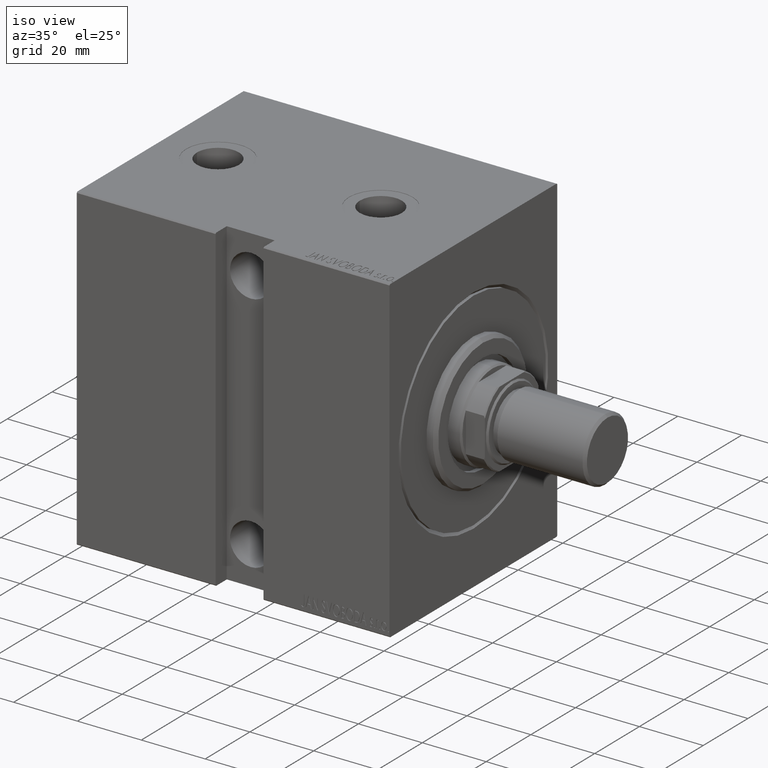
[diagram: clean part render]
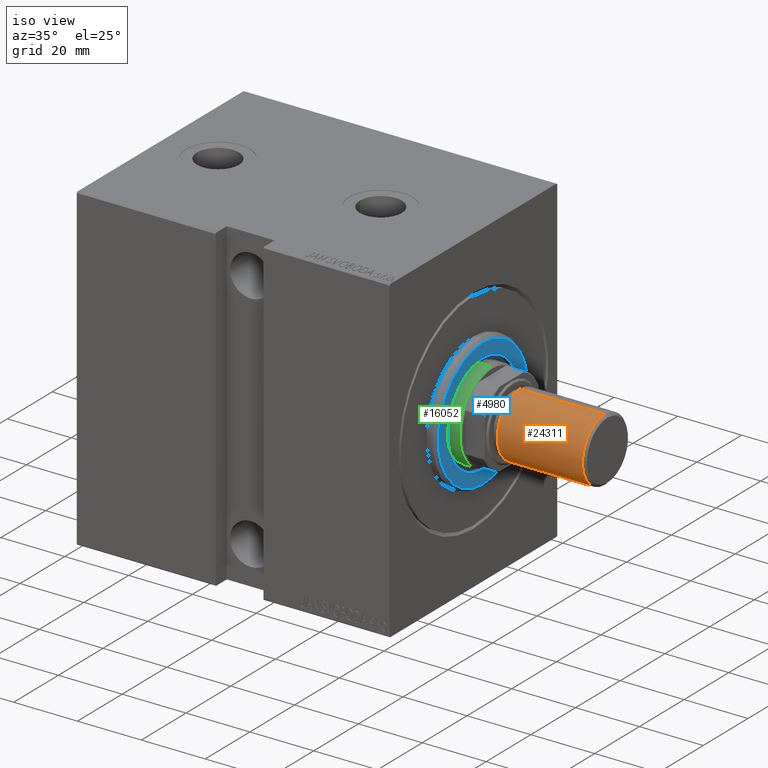
[diagram: same view with three faces highlighted in distinct colors, each labeled with its STEP entity id]
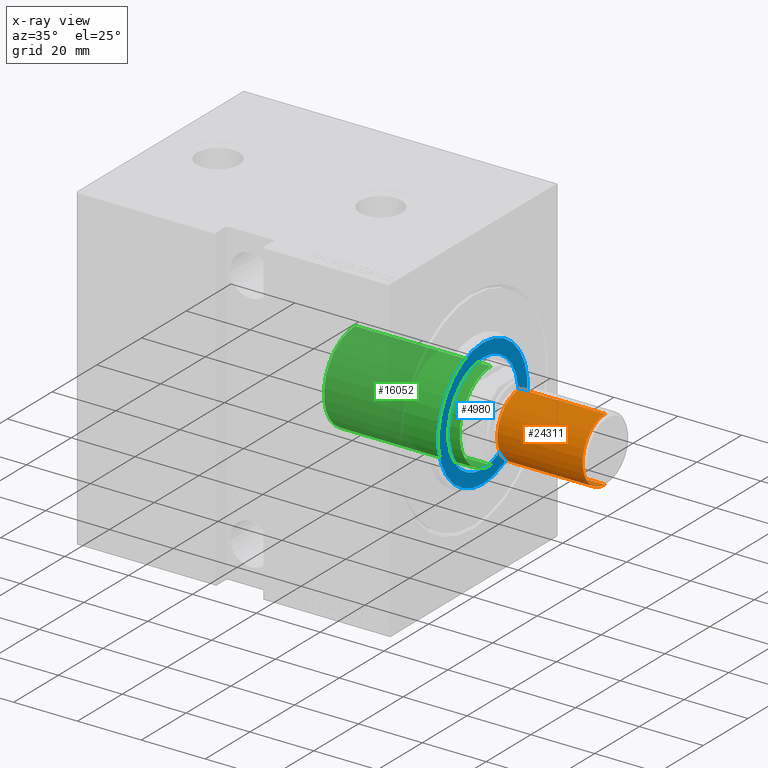
[diagram: x-ray of the same camera — body ghosted, the three highlighted faces saturated]
A machine part, iso view with three faces highlighted in distinct colors.
The next image is the same camera in x-ray (body ghosted, the three faces saturated) — at least one of them is partly hidden behind the body in this view.
Their STEP definitions:

[orange] entity #24311 — the highlighted cylindrical surface (partial cylindrical patch) has radius 10 mm, axis along (1, -0, -0).
#434 = ORIENTED_EDGE ( 'NONE', *, *, #38441, .F. ) ;
#1640 = VECTOR ( 'NONE', #12829, 1000.000000000000000 ) ;
#2668 = VERTEX_POINT ( 'NONE', #12031 ) ;
#3150 = LINE ( 'NONE', #9964, #1640 ) ;
#4742 = EDGE_LOOP ( 'NONE', ( #434, #14856, #32154, #31293 ) ) ;
#4784 = DIRECTION ( 'NONE',  ( 0.000000000000000000, 0.000000000000000000, 1.000000000000000000 ) ) ;
#4908 = DIRECTION ( 'NONE',  ( 1.000000000000000000, 0.000000000000000000, 0.000000000000000000 ) ) ;
#4984 = EDGE_CURVE ( 'NONE', #24173, #42825, #3150, .T. ) ;
#8342 = EDGE_CURVE ( 'NONE', #24173, #2668, #24090, .T. ) ;
#8740 = DIRECTION ( 'NONE',  ( 1.000000000000000000, 0.000000000000000000, 0.000000000000000000 ) ) ;
#9078 = FACE_OUTER_BOUND ( 'NONE', #4742, .T. ) ;
#9964 = CARTESIAN_POINT ( 'NONE',  ( -10.00000000000000000, 0.000000000000000000, 27.50000000000000000 ) ) ;
#12031 = CARTESIAN_POINT ( 'NONE',  ( 10.00000000000000000, 1.224646799147353256E-15, 27.50000000000000000 ) ) ;
#12829 = DIRECTION ( 'NONE',  ( -0.000000000000000000, -0.000000000000000000, -1.000000000000000000 ) ) ;
#13603 = AXIS2_PLACEMENT_3D ( 'NONE', #38158, #4784, #8740 ) ;
#14582 = CARTESIAN_POINT ( 'NONE',  ( 0.000000000000000000, 0.000000000000000000, 0.7999999999999986011 ) ) ;
#14856 = ORIENTED_EDGE ( 'NONE', *, *, #8342, .F. ) ;
#15663 = CARTESIAN_POINT ( 'NONE',  ( 0.000000000000000000, 0.000000000000000000, 27.50000000000000000 ) ) ;
#16088 = CYLINDRICAL_SURFACE ( 'NONE', #29169, 10.00000000000000000 ) ;
#19268 = EDGE_CURVE ( 'NONE', #42825, #37185, #34803, .T. ) ;
#24090 = CIRCLE ( 'NONE', #13603, 10.00000000000000000 ) ;
#24173 = VERTEX_POINT ( 'NONE', #40268 ) ;
#24311 = ADVANCED_FACE ( 'NONE', ( #9078 ), #16088, .T. ) ;
#24526 = VECTOR ( 'NONE', #35537, 1000.000000000000000 ) ;
#26260 = CARTESIAN_POINT ( 'NONE',  ( 10.00000000000000000, 1.224646799147353256E-15, 27.50000000000000000 ) ) ;
#27962 = DIRECTION ( 'NONE',  ( -0.000000000000000000, -0.000000000000000000, 1.000000000000000000 ) ) ;
#28222 = CARTESIAN_POINT ( 'NONE',  ( -10.00000000000000000, 0.000000000000000000, 0.7999999999999986011 ) ) ;
#29169 = AXIS2_PLACEMENT_3D ( 'NONE', #15663, #39368, #42858 ) ;
#29357 = LINE ( 'NONE', #26260, #24526 ) ;
#31293 = ORIENTED_EDGE ( 'NONE', *, *, #19268, .T. ) ;
#32154 = ORIENTED_EDGE ( 'NONE', *, *, #4984, .T. ) ;
#34803 = CIRCLE ( 'NONE', #36173, 10.00000000000000000 ) ;
#35537 = DIRECTION ( 'NONE',  ( -0.000000000000000000, -0.000000000000000000, -1.000000000000000000 ) ) ;
#36173 = AXIS2_PLACEMENT_3D ( 'NONE', #14582, #27962, #4908 ) ;
#37185 = VERTEX_POINT ( 'NONE', #37500 ) ;
#37500 = CARTESIAN_POINT ( 'NONE',  ( 10.00000000000000000, 1.224646799147353256E-15, 0.7999999999999986011 ) ) ;
#38158 = CARTESIAN_POINT ( 'NONE',  ( 0.000000000000000000, 0.000000000000000000, 27.50000000000000000 ) ) ;
#38441 = EDGE_CURVE ( 'NONE', #2668, #37185, #29357, .T. ) ;
#39368 = DIRECTION ( 'NONE',  ( -0.000000000000000000, -0.000000000000000000, -1.000000000000000000 ) ) ;
#40268 = CARTESIAN_POINT ( 'NONE',  ( -10.00000000000000000, 0.000000000000000000, 27.50000000000000000 ) ) ;
#42825 = VERTEX_POINT ( 'NONE', #28222 ) ;
#42858 = DIRECTION ( 'NONE',  ( -1.000000000000000000, 0.000000000000000000, 0.000000000000000000 ) ) ;

[blue] entity #4980 — the highlighted planar face has unit normal (1, 0, 0).
#289 = EDGE_CURVE ( 'NONE', #17745, #40610, #35284, .T. ) ;
#344 = ORIENTED_EDGE ( 'NONE', *, *, #289, .T. ) ;
#1896 = CIRCLE ( 'NONE', #12387, 15.75000000000000000 ) ;
#2728 = FACE_BOUND ( 'NONE', #35295, .T. ) ;
#4980 = ADVANCED_FACE ( 'NONE', ( #32799, #2728 ), #6446, .T. ) ;
#5120 = AXIS2_PLACEMENT_3D ( 'NONE', #40030, #33228, #43312 ) ;
#5365 = DIRECTION ( 'NONE',  ( -1.000000000000000000, 0.000000000000000000, -0.000000000000000000 ) ) ;
#6446 = PLANE ( 'NONE',  #5120 ) ;
#6972 = DIRECTION ( 'NONE',  ( 0.000000000000000000, 0.000000000000000000, -1.000000000000000000 ) ) ;
#7191 = CARTESIAN_POINT ( 'NONE',  ( 3.000000000000000000, 1.928818708657080950E-15, -15.75000000000000000 ) ) ;
#8126 = AXIS2_PLACEMENT_3D ( 'NONE', #25342, #5365, #24903 ) ;
#9227 = AXIS2_PLACEMENT_3D ( 'NONE', #39473, #23204, #36177 ) ;
#9723 = EDGE_LOOP ( 'NONE', ( #26194, #344 ) ) ;
#10201 = ORIENTED_EDGE ( 'NONE', *, *, #25808, .T. ) ;
#12387 = AXIS2_PLACEMENT_3D ( 'NONE', #38232, #28770, #24829 ) ;
#13774 = DIRECTION ( 'NONE',  ( 1.000000000000000000, -0.000000000000000000, 0.000000000000000000 ) ) ;
#15924 = CIRCLE ( 'NONE', #8126, 15.75000000000000000 ) ;
#16742 = EDGE_CURVE ( 'NONE', #22270, #27018, #15924, .T. ) ;
#17745 = VERTEX_POINT ( 'NONE', #24202 ) ;
#19534 = CIRCLE ( 'NONE', #22367, 20.00000000000001776 ) ;
#22270 = VERTEX_POINT ( 'NONE', #43006 ) ;
#22367 = AXIS2_PLACEMENT_3D ( 'NONE', #37044, #13774, #6972 ) ;
#23204 = DIRECTION ( 'NONE',  ( 1.000000000000000000, -0.000000000000000000, 0.000000000000000000 ) ) ;
#24202 = CARTESIAN_POINT ( 'NONE',  ( 3.000000000000000000, 2.510525938252075270E-15, -20.00000000000001776 ) ) ;
#24829 = DIRECTION ( 'NONE',  ( 0.000000000000000000, 0.000000000000000000, -1.000000000000000000 ) ) ;
#24903 = DIRECTION ( 'NONE',  ( 0.000000000000000000, 0.000000000000000000, -1.000000000000000000 ) ) ;
#25342 = CARTESIAN_POINT ( 'NONE',  ( 3.000000000000000000, 0.000000000000000000, 0.000000000000000000 ) ) ;
#25808 = EDGE_CURVE ( 'NONE', #27018, #22270, #1896, .T. ) ;
#26194 = ORIENTED_EDGE ( 'NONE', *, *, #31441, .T. ) ;
#27018 = VERTEX_POINT ( 'NONE', #7191 ) ;
#28770 = DIRECTION ( 'NONE',  ( -1.000000000000000000, 0.000000000000000000, -0.000000000000000000 ) ) ;
#31441 = EDGE_CURVE ( 'NONE', #40610, #17745, #19534, .T. ) ;
#32799 = FACE_OUTER_BOUND ( 'NONE', #9723, .T. ) ;
#33228 = DIRECTION ( 'NONE',  ( 1.000000000000000000, -0.000000000000000000, 0.000000000000000000 ) ) ;
#35284 = CIRCLE ( 'NONE', #9227, 20.00000000000001776 ) ;
#35295 = EDGE_LOOP ( 'NONE', ( #38475, #10201 ) ) ;
#36177 = DIRECTION ( 'NONE',  ( 0.000000000000000000, 0.000000000000000000, -1.000000000000000000 ) ) ;
#37044 = CARTESIAN_POINT ( 'NONE',  ( 3.000000000000000000, 0.000000000000000000, 0.000000000000000000 ) ) ;
#38232 = CARTESIAN_POINT ( 'NONE',  ( 3.000000000000000000, 0.000000000000000000, 0.000000000000000000 ) ) ;
#38475 = ORIENTED_EDGE ( 'NONE', *, *, #16742, .T. ) ;
#39070 = CARTESIAN_POINT ( 'NONE',  ( 3.000000000000000000, 0.000000000000000000, 20.00000000000001776 ) ) ;
#39473 = CARTESIAN_POINT ( 'NONE',  ( 3.000000000000000000, 0.000000000000000000, 0.000000000000000000 ) ) ;
#40030 = CARTESIAN_POINT ( 'NONE',  ( 3.000000000000000000, 0.000000000000000000, 0.000000000000000000 ) ) ;
#40610 = VERTEX_POINT ( 'NONE', #39070 ) ;
#43006 = CARTESIAN_POINT ( 'NONE',  ( 3.000000000000000000, 0.000000000000000000, 15.75000000000000000 ) ) ;
#43312 = DIRECTION ( 'NONE',  ( 0.000000000000000000, 0.000000000000000000, -1.000000000000000000 ) ) ;

[green] entity #16052 — the highlighted cylindrical surface (partial cylindrical patch) has radius 14 mm, axis along (-1, -0, 0).
#141 = VERTEX_POINT ( 'NONE', #5673 ) ;
#2403 = DIRECTION ( 'NONE',  ( -0.000000000000000000, -0.000000000000000000, -1.000000000000000000 ) ) ;
#3585 = VECTOR ( 'NONE', #2403, 1000.000000000000000 ) ;
#4122 = EDGE_CURVE ( 'NONE', #28741, #141, #16298, .T. ) ;
#5673 = CARTESIAN_POINT ( 'NONE',  ( 14.00000000000000178, 1.714505518806294835E-15, 47.00000000000000000 ) ) ;
#5697 = LINE ( 'NONE', #32480, #3585 ) ;
#10414 = DIRECTION ( 'NONE',  ( 1.000000000000000000, 0.000000000000000000, 0.000000000000000000 ) ) ;
#13395 = FACE_OUTER_BOUND ( 'NONE', #40291, .T. ) ;
#16052 = ADVANCED_FACE ( 'NONE', ( #13395 ), #29051, .T. ) ;
#16298 = CIRCLE ( 'NONE', #27505, 14.00000000000000178 ) ;
#16557 = ORIENTED_EDGE ( 'NONE', *, *, #4122, .T. ) ;
#16697 = AXIS2_PLACEMENT_3D ( 'NONE', #33731, #24496, #17911 ) ;
#17911 = DIRECTION ( 'NONE',  ( 1.000000000000000000, 0.000000000000000000, 0.000000000000000000 ) ) ;
#19761 = CARTESIAN_POINT ( 'NONE',  ( 14.00000000000000178, 1.714505518806294835E-15, 90.00000000000000000 ) ) ;
#20141 = CARTESIAN_POINT ( 'NONE',  ( 14.00000000000000178, 1.714505518806294835E-15, 89.49999999999997158 ) ) ;
#20186 = DIRECTION ( 'NONE',  ( -0.000000000000000000, -0.000000000000000000, -1.000000000000000000 ) ) ;
#20261 = CARTESIAN_POINT ( 'NONE',  ( -14.00000000000000178, 0.000000000000000000, 47.00000000000000000 ) ) ;
#21469 = ORIENTED_EDGE ( 'NONE', *, *, #29256, .T. ) ;
#23285 = LINE ( 'NONE', #19761, #39950 ) ;
#23681 = CIRCLE ( 'NONE', #16697, 14.00000000000000178 ) ;
#24496 = DIRECTION ( 'NONE',  ( 0.000000000000000000, 0.000000000000000000, -1.000000000000000000 ) ) ;
#25758 = CARTESIAN_POINT ( 'NONE',  ( 0.000000000000000000, 0.000000000000000000, 90.00000000000000000 ) ) ;
#27505 = AXIS2_PLACEMENT_3D ( 'NONE', #40469, #34107, #10414 ) ;
#28741 = VERTEX_POINT ( 'NONE', #20261 ) ;
#29035 = ORIENTED_EDGE ( 'NONE', *, *, #35010, .F. ) ;
#29051 = CYLINDRICAL_SURFACE ( 'NONE', #29204, 14.00000000000000178 ) ;
#29204 = AXIS2_PLACEMENT_3D ( 'NONE', #25758, #20186, #33593 ) ;
#29256 = EDGE_CURVE ( 'NONE', #40685, #40087, #23681, .T. ) ;
#29651 = DIRECTION ( 'NONE',  ( -0.000000000000000000, -0.000000000000000000, -1.000000000000000000 ) ) ;
#32480 = CARTESIAN_POINT ( 'NONE',  ( -14.00000000000000178, 0.000000000000000000, 90.00000000000000000 ) ) ;
#32625 = CARTESIAN_POINT ( 'NONE',  ( -14.00000000000000178, 0.000000000000000000, 89.49999999999997158 ) ) ;
#33593 = DIRECTION ( 'NONE',  ( -1.000000000000000000, 0.000000000000000000, 0.000000000000000000 ) ) ;
#33731 = CARTESIAN_POINT ( 'NONE',  ( 0.000000000000000000, 0.000000000000000000, 89.49999999999997158 ) ) ;
#34107 = DIRECTION ( 'NONE',  ( 0.000000000000000000, 0.000000000000000000, 1.000000000000000000 ) ) ;
#34137 = ORIENTED_EDGE ( 'NONE', *, *, #42423, .T. ) ;
#35010 = EDGE_CURVE ( 'NONE', #40685, #141, #23285, .T. ) ;
#39950 = VECTOR ( 'NONE', #29651, 1000.000000000000000 ) ;
#40087 = VERTEX_POINT ( 'NONE', #32625 ) ;
#40291 = EDGE_LOOP ( 'NONE', ( #29035, #21469, #34137, #16557 ) ) ;
#40469 = CARTESIAN_POINT ( 'NONE',  ( 0.000000000000000000, 0.000000000000000000, 47.00000000000000000 ) ) ;
#40685 = VERTEX_POINT ( 'NONE', #20141 ) ;
#42423 = EDGE_CURVE ( 'NONE', #40087, #28741, #5697, .T. ) ;